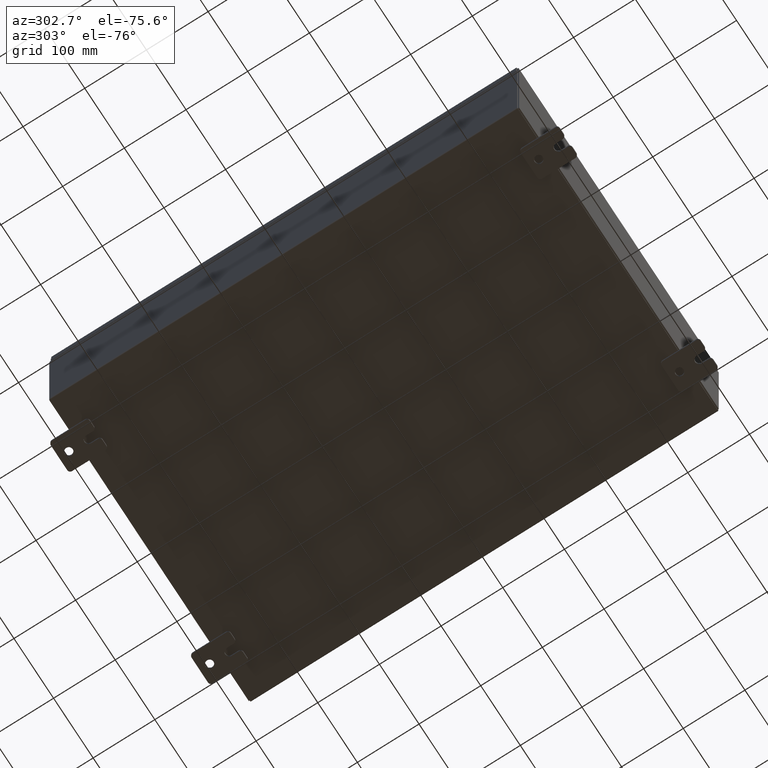
[diagram: clean part render]
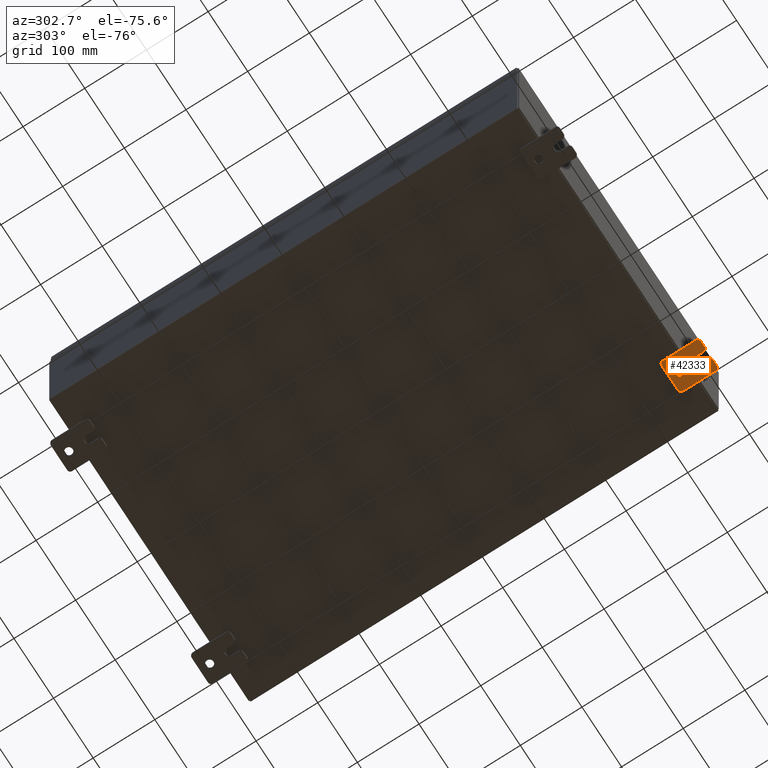
[diagram: same view with one face highlighted and labeled with its STEP entity id]
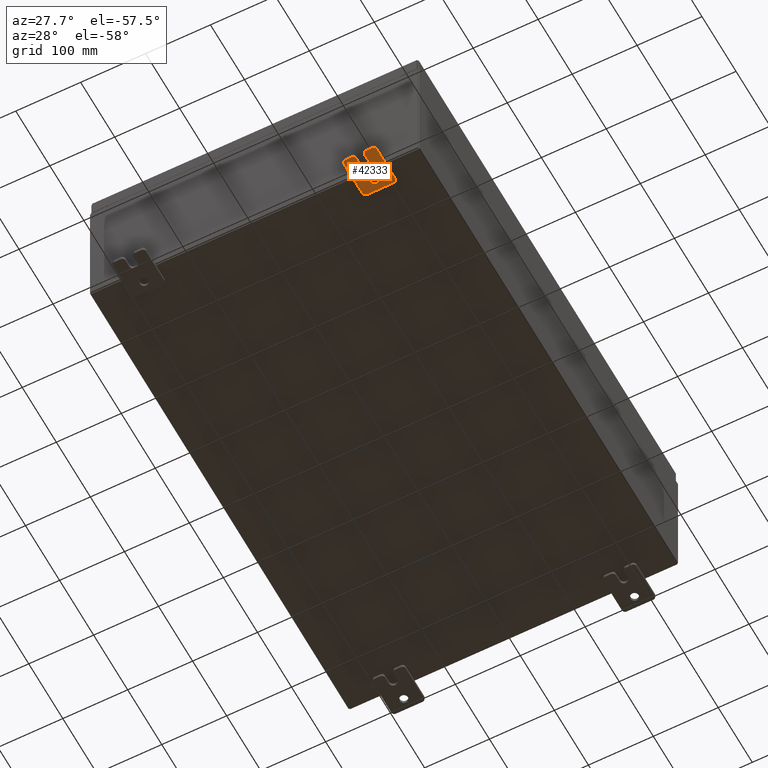
[diagram: same view with one face highlighted and labeled with its STEP entity id]
A machine part, auxiliary view. The second image highlights one B-rep face of the part: STEP entity #42333.
A second angle (auxiliary view) of the same face is appended — the face is thin or edge-on in the first view.
In plain terms, the highlighted planar face has unit normal (0, 0, 1).
Its self-contained STEP definition (entity closure, byte-faithful):
#561 = DIRECTION ( 'NONE',  ( -1.000000000000000000, -0.0000000000000000000, 0.0000000000000000000 ) ) ;
#2164 = EDGE_CURVE ( 'NONE', #20357, #38107, #47933, .T. ) ;
#2363 = CARTESIAN_POINT ( 'NONE',  ( -0.1879999999999997800, 1.059999999999996300, 0.8099999999999938400 ) ) ;
#2695 = EDGE_CURVE ( 'NONE', #35760, #34808, #50231, .T. ) ;
#3506 = VERTEX_POINT ( 'NONE', #20295 ) ;
#4076 = PLANE ( 'NONE',  #13292 ) ;
#4693 = CIRCLE ( 'NONE', #10928, 0.1900000000000011400 ) ;
#4873 = EDGE_LOOP ( 'NONE', ( #9118, #12090, #20393, #42142, #14215, #55260, #10449, #8570, #17179, #15512, #61483, #57178, #25355, #19950 ) ) ;
#5446 = AXIS2_PLACEMENT_3D ( 'NONE', #51055, #21403, #56020 ) ;
#6618 = DIRECTION ( 'NONE',  ( -1.000000000000000000, 6.523827964459549700E-016, 5.163192708025532000E-017 ) ) ;
#6983 = EDGE_CURVE ( 'NONE', #9924, #41671, #30704, .T. ) ;
#7339 = DIRECTION ( 'NONE',  ( 0.0000000000000000000, 0.0000000000000000000, -1.000000000000000000 ) ) ;
#8416 = AXIS2_PLACEMENT_3D ( 'NONE', #2363, #37083, #7339 ) ;
#8557 = AXIS2_PLACEMENT_3D ( 'NONE', #10921, #45670, #15933 ) ;
#8558 = LINE ( 'NONE', #39880, #41957 ) ;
#8570 = ORIENTED_EDGE ( 'NONE', *, *, #31747, .T. ) ;
#9019 = DIRECTION ( 'NONE',  ( 1.000000000000000000, 0.0000000000000000000, -0.0000000000000000000 ) ) ;
#9118 = ORIENTED_EDGE ( 'NONE', *, *, #2695, .F. ) ;
#9769 = EDGE_CURVE ( 'NONE', #63338, #38107, #14162, .T. ) ;
#9924 = VERTEX_POINT ( 'NONE', #52837 ) ;
#10449 = ORIENTED_EDGE ( 'NONE', *, *, #21776, .F. ) ;
#10502 = CARTESIAN_POINT ( 'NONE',  ( -0.1879999999999997800, -1.060000000000004500, -1.000000000000006400 ) ) ;
#10921 = CARTESIAN_POINT ( 'NONE',  ( -0.1880000000000010000, 0.6249999999999992200, -7.703811342100550500E-020 ) ) ;
#10928 = AXIS2_PLACEMENT_3D ( 'NONE', #46268, #16549, #51201 ) ;
#11074 = VERTEX_POINT ( 'NONE', #41970 ) ;
#11265 = CARTESIAN_POINT ( 'NONE',  ( -0.1879999999999997800, -1.060000000000001200, 0.9999999999999988900 ) ) ;
#12050 = VERTEX_POINT ( 'NONE', #10502 ) ;
#12090 = ORIENTED_EDGE ( 'NONE', *, *, #42714, .T. ) ;
#12232 = VERTEX_POINT ( 'NONE', #21449 ) ;
#13130 = CARTESIAN_POINT ( 'NONE',  ( -0.1880000000000005800, -1.250000000000003800, 0.2500000000000005000 ) ) ;
#13292 = AXIS2_PLACEMENT_3D ( 'NONE', #23831, #9019, #43777 ) ;
#13567 = DIRECTION ( 'NONE',  ( 0.0000000000000000000, 1.000000000000000000, -1.639108796198558100E-015 ) ) ;
#14162 = CIRCLE ( 'NONE', #8416, 0.1900000000000011100 ) ;
#14215 = ORIENTED_EDGE ( 'NONE', *, *, #2164, .F. ) ;
#14432 = DIRECTION ( 'NONE',  ( 0.0000000000000000000, -1.000000000000000000, 1.639108796198558100E-015 ) ) ;
#14851 = CIRCLE ( 'NONE', #44613, 0.1900000000000011100 ) ;
#15512 = ORIENTED_EDGE ( 'NONE', *, *, #47728, .T. ) ;
#15933 = DIRECTION ( 'NONE',  ( 0.0000000000000000000, 0.0000000000000000000, -1.000000000000000000 ) ) ;
#16549 = DIRECTION ( 'NONE',  ( -1.000000000000000000, -0.0000000000000000000, 0.0000000000000000000 ) ) ;
#16641 = LINE ( 'NONE', #46383, #54604 ) ;
#16677 = DIRECTION ( 'NONE',  ( 0.0000000000000000000, -1.639108796198553600E-015, -1.000000000000000000 ) ) ;
#17179 = ORIENTED_EDGE ( 'NONE', *, *, #41004, .F. ) ;
#17270 = EDGE_CURVE ( 'NONE', #63338, #45917, #53322, .T. ) ;
#17876 = VECTOR ( 'NONE', #28144, 39.37007874015748100 ) ;
#17961 = DIRECTION ( 'NONE',  ( -1.000000000000000000, -0.0000000000000000000, 0.0000000000000000000 ) ) ;
#19950 = ORIENTED_EDGE ( 'NONE', *, *, #59939, .T. ) ;
#20295 = CARTESIAN_POINT ( 'NONE',  ( -0.1879999999999997800, 1.059999999999993400, -1.000000000000010000 ) ) ;
#20357 = VERTEX_POINT ( 'NONE', #30664 ) ;
#20393 = ORIENTED_EDGE ( 'NONE', *, *, #17270, .F. ) ;
#20542 = CIRCLE ( 'NONE', #5446, 0.1900000000000011100 ) ;
#21286 = VECTOR ( 'NONE', #13567, 39.37007874015748100 ) ;
#21403 = DIRECTION ( 'NONE',  ( -1.000000000000000000, -0.0000000000000000000, 0.0000000000000000000 ) ) ;
#21449 = CARTESIAN_POINT ( 'NONE',  ( -0.1880000000000004700, -1.060000000000002100, 0.2500000000000005000 ) ) ;
#21776 = EDGE_CURVE ( 'NONE', #12050, #3506, #47629, .T. ) ;
#23744 = EDGE_CURVE ( 'NONE', #49500, #60255, #46421, .T. ) ;
#23831 = CARTESIAN_POINT ( 'NONE',  ( -0.1879999999999997800, 0.0000000000000000000, 0.0000000000000000000 ) ) ;
#24055 = DIRECTION ( 'NONE',  ( 1.000000000000000000, -0.0000000000000000000, -5.163192708025532000E-017 ) ) ;
#24617 = CARTESIAN_POINT ( 'NONE',  ( -0.1880000000000010000, 0.6249999999999992200, 0.2499999999999999200 ) ) ;
#24910 = DIRECTION ( 'NONE',  ( -6.556435184794182400E-016, -1.000000000000000000, -1.639108796198545600E-016 ) ) ;
#25293 = CARTESIAN_POINT ( 'NONE',  ( -0.1879999999999997800, 1.249999999999994200, -1.000000000000010400 ) ) ;
#25355 = ORIENTED_EDGE ( 'NONE', *, *, #47980, .F. ) ;
#25459 = VECTOR ( 'NONE', #14432, 39.37007874015748100 ) ;
#26855 = EDGE_CURVE ( 'NONE', #20357, #3506, #43130, .T. ) ;
#27197 = CIRCLE ( 'NONE', #43483, 0.1900000000000011100 ) ;
#28144 = DIRECTION ( 'NONE',  ( 6.556435184794182400E-016, 1.000000000000000000, 0.0000000000000000000 ) ) ;
#28515 = CARTESIAN_POINT ( 'NONE',  ( -0.1879999999999997800, 1.059999999999996500, 0.9999999999999953400 ) ) ;
#29673 = DIRECTION ( 'NONE',  ( -1.000000000000000000, -0.0000000000000000000, 0.0000000000000000000 ) ) ;
#29856 = FACE_OUTER_BOUND ( 'NONE', #4873, .T. ) ;
#30331 = CARTESIAN_POINT ( 'NONE',  ( -0.1879999999999997800, -1.060000000000003400, -0.4400000000000005000 ) ) ;
#30463 = CARTESIAN_POINT ( 'NONE',  ( -0.1879999999999997800, -1.250000000000005300, -0.8100000000000047200 ) ) ;
#30544 = VERTEX_POINT ( 'NONE', #31718 ) ;
#30664 = CARTESIAN_POINT ( 'NONE',  ( -0.1879999999999997800, 1.249999999999994700, -0.8100000000000092700 ) ) ;
#30704 = CIRCLE ( 'NONE', #38288, 0.2499999999999999200 ) ;
#31718 = CARTESIAN_POINT ( 'NONE',  ( -0.1879999999999997800, -1.250000000000004700, -0.4400000000000002200 ) ) ;
#31747 = EDGE_CURVE ( 'NONE', #12050, #39418, #14851, .T. ) ;
#33108 = EDGE_CURVE ( 'NONE', #41671, #11074, #8558, .T. ) ;
#33981 = VECTOR ( 'NONE', #39257, 39.37007874015748100 ) ;
#34634 = CIRCLE ( 'NONE', #37755, 0.2499999999999999200 ) ;
#34790 = VECTOR ( 'NONE', #53066, 39.37007874015748100 ) ;
#34808 = VERTEX_POINT ( 'NONE', #52326 ) ;
#35307 = DIRECTION ( 'NONE',  ( 0.0000000000000000000, 0.0000000000000000000, -1.000000000000000000 ) ) ;
#35760 = VERTEX_POINT ( 'NONE', #62078 ) ;
#36184 = AXIS2_PLACEMENT_3D ( 'NONE', #59259, #29673, #64236 ) ;
#36364 = CARTESIAN_POINT ( 'NONE',  ( -0.1880000000000001900, -0.6249999999999992200, 6.829619984160658000E-017 ) ) ;
#37083 = DIRECTION ( 'NONE',  ( -1.000000000000000000, -0.0000000000000000000, 0.0000000000000000000 ) ) ;
#37755 = AXIS2_PLACEMENT_3D ( 'NONE', #53701, #24055, #58617 ) ;
#37783 = CARTESIAN_POINT ( 'NONE',  ( -0.1880000000000010000, 0.6249999999999992200, -0.2499999999999999200 ) ) ;
#38107 = VERTEX_POINT ( 'NONE', #63817 ) ;
#38288 = AXIS2_PLACEMENT_3D ( 'NONE', #36364, #6618, #41355 ) ;
#38528 = EDGE_CURVE ( 'NONE', #60255, #49500, #34634, .T. ) ;
#39257 = DIRECTION ( 'NONE',  ( 0.0000000000000000000, -1.639108796198553600E-015, -1.000000000000000000 ) ) ;
#39418 = VERTEX_POINT ( 'NONE', #30463 ) ;
#39880 = CARTESIAN_POINT ( 'NONE',  ( -0.1880000000000001900, -0.6249999999999992200, -0.2499999999999993900 ) ) ;
#41004 = EDGE_CURVE ( 'NONE', #30544, #39418, #16641, .T. ) ;
#41355 = DIRECTION ( 'NONE',  ( -6.829619984160660000E-016, -1.000000000000000000, 0.0000000000000000000 ) ) ;
#41671 = VERTEX_POINT ( 'NONE', #59796 ) ;
#41957 = VECTOR ( 'NONE', #24910, 39.37007874015748100 ) ;
#41970 = CARTESIAN_POINT ( 'NONE',  ( -0.1880000000000004700, -1.060000000000003400, -0.2499999999999994400 ) ) ;
#42131 = CARTESIAN_POINT ( 'NONE',  ( -0.1879999999999997800, -1.250000000000002200, 0.9999999999999992200 ) ) ;
#42142 = ORIENTED_EDGE ( 'NONE', *, *, #9769, .T. ) ;
#42333 = ADVANCED_FACE ( 'NONE', ( #56157, #29856 ), #4076, .F. ) ;
#42714 = EDGE_CURVE ( 'NONE', #35760, #45917, #20542, .T. ) ;
#43130 = CIRCLE ( 'NONE', #36184, 0.1900000000000011100 ) ;
#43316 = CARTESIAN_POINT ( 'NONE',  ( -0.1879999999999997800, -1.250000000000005600, -1.000000000000006200 ) ) ;
#43325 = ORIENTED_EDGE ( 'NONE', *, *, #38528, .T. ) ;
#43483 = AXIS2_PLACEMENT_3D ( 'NONE', #30331, #561, #35307 ) ;
#43777 = DIRECTION ( 'NONE',  ( -0.0000000000000000000, 0.0000000000000000000, -1.000000000000000000 ) ) ;
#44613 = AXIS2_PLACEMENT_3D ( 'NONE', #47616, #17961, #52569 ) ;
#45670 = DIRECTION ( 'NONE',  ( 1.000000000000000000, -0.0000000000000000000, -5.163192708025532000E-017 ) ) ;
#45917 = VERTEX_POINT ( 'NONE', #11265 ) ;
#46268 = CARTESIAN_POINT ( 'NONE',  ( -0.1879999999999997800, -1.060000000000002100, 0.4400000000000016700 ) ) ;
#46383 = CARTESIAN_POINT ( 'NONE',  ( -0.1879999999999997800, -1.250000000000002200, 0.9999999999999992200 ) ) ;
#46421 = CIRCLE ( 'NONE', #8557, 0.2499999999999999200 ) ;
#47616 = CARTESIAN_POINT ( 'NONE',  ( -0.1879999999999997800, -1.060000000000004100, -0.8100000000000050500 ) ) ;
#47629 = LINE ( 'NONE', #43316, #21286 ) ;
#47728 = EDGE_CURVE ( 'NONE', #30544, #11074, #27197, .T. ) ;
#47933 = LINE ( 'NONE', #25293, #34790 ) ;
#47980 = EDGE_CURVE ( 'NONE', #12232, #9924, #57337, .T. ) ;
#49500 = VERTEX_POINT ( 'NONE', #24617 ) ;
#49929 = EDGE_LOOP ( 'NONE', ( #43325, #52483 ) ) ;
#50231 = LINE ( 'NONE', #42131, #33981 ) ;
#51055 = CARTESIAN_POINT ( 'NONE',  ( -0.1879999999999997800, -1.060000000000001600, 0.8099999999999978300 ) ) ;
#51201 = DIRECTION ( 'NONE',  ( 0.0000000000000000000, 0.0000000000000000000, -1.000000000000000000 ) ) ;
#52326 = CARTESIAN_POINT ( 'NONE',  ( -0.1879999999999997800, -1.250000000000003100, 0.4400000000000020000 ) ) ;
#52483 = ORIENTED_EDGE ( 'NONE', *, *, #23744, .T. ) ;
#52569 = DIRECTION ( 'NONE',  ( 0.0000000000000000000, 0.0000000000000000000, -1.000000000000000000 ) ) ;
#52837 = CARTESIAN_POINT ( 'NONE',  ( -0.1880000000000001900, -0.6249999999999992200, 0.2500000000000005000 ) ) ;
#53066 = DIRECTION ( 'NONE',  ( 0.0000000000000000000, 1.639108796198553600E-015, 1.000000000000000000 ) ) ;
#53322 = LINE ( 'NONE', #58813, #25459 ) ;
#53701 = CARTESIAN_POINT ( 'NONE',  ( -0.1880000000000010000, 0.6249999999999992200, -7.703811342100550500E-020 ) ) ;
#54604 = VECTOR ( 'NONE', #16677, 39.37007874015748100 ) ;
#55260 = ORIENTED_EDGE ( 'NONE', *, *, #26855, .T. ) ;
#56020 = DIRECTION ( 'NONE',  ( 0.0000000000000000000, 7.189073667537492800E-016, -1.000000000000000000 ) ) ;
#56157 = FACE_BOUND ( 'NONE', #49929, .T. ) ;
#57178 = ORIENTED_EDGE ( 'NONE', *, *, #6983, .F. ) ;
#57337 = LINE ( 'NONE', #13130, #17876 ) ;
#58617 = DIRECTION ( 'NONE',  ( 0.0000000000000000000, 0.0000000000000000000, -1.000000000000000000 ) ) ;
#58813 = CARTESIAN_POINT ( 'NONE',  ( -0.1879999999999997800, 1.249999999999997600, 0.9999999999999951200 ) ) ;
#59259 = CARTESIAN_POINT ( 'NONE',  ( -0.1879999999999997800, 1.059999999999993600, -0.8100000000000089400 ) ) ;
#59796 = CARTESIAN_POINT ( 'NONE',  ( -0.1880000000000001900, -0.6249999999999992200, -0.2499999999999998600 ) ) ;
#59939 = EDGE_CURVE ( 'NONE', #12232, #34808, #4693, .T. ) ;
#60255 = VERTEX_POINT ( 'NONE', #37783 ) ;
#61483 = ORIENTED_EDGE ( 'NONE', *, *, #33108, .F. ) ;
#62078 = CARTESIAN_POINT ( 'NONE',  ( -0.1879999999999997800, -1.250000000000002400, 0.8099999999999980500 ) ) ;
#63338 = VERTEX_POINT ( 'NONE', #28515 ) ;
#63817 = CARTESIAN_POINT ( 'NONE',  ( -0.1879999999999997800, 1.249999999999997300, 0.8099999999999935000 ) ) ;
#64236 = DIRECTION ( 'NONE',  ( 0.0000000000000000000, 0.0000000000000000000, -1.000000000000000000 ) ) ;